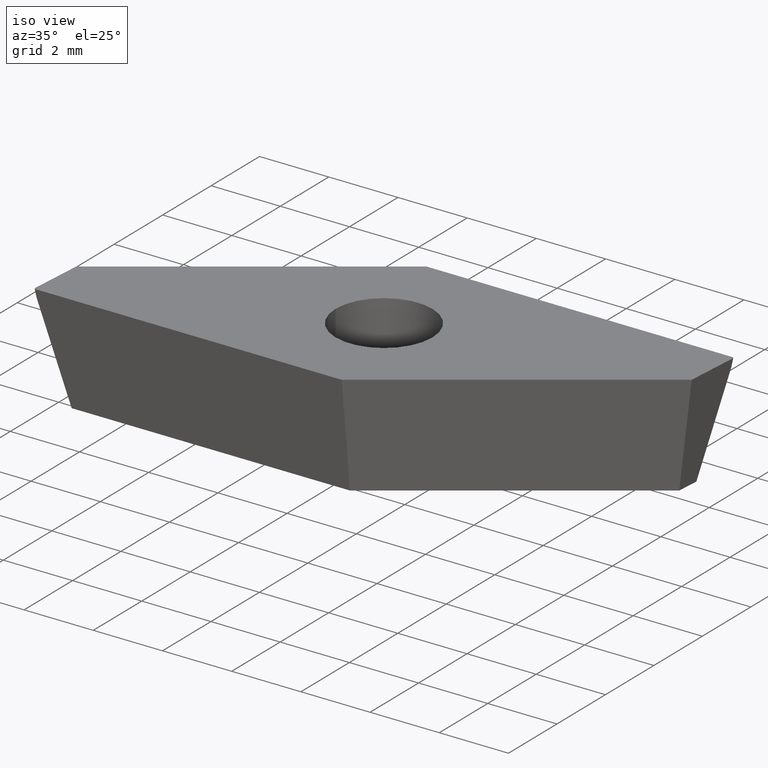
[diagram: clean part render]
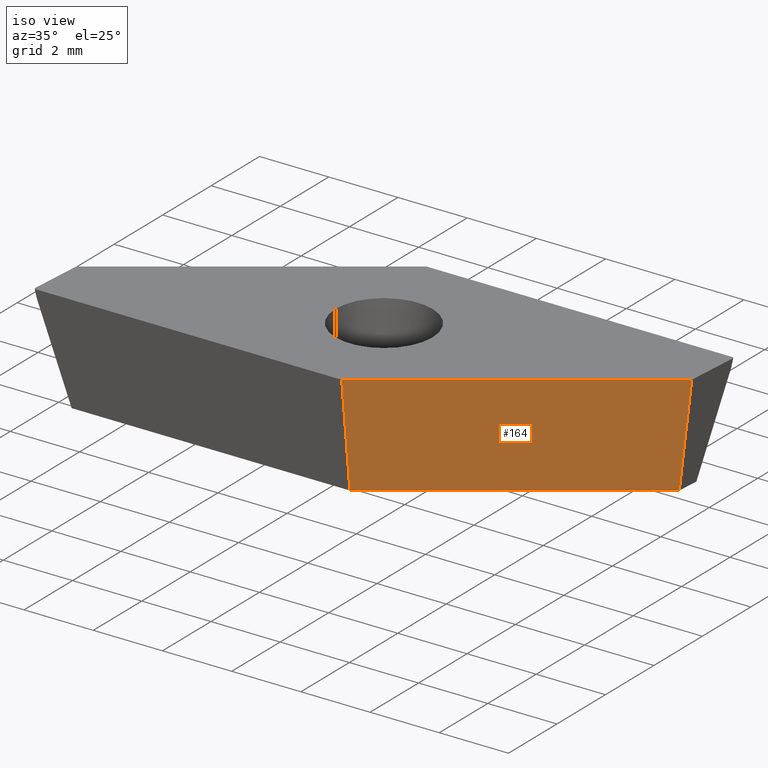
[diagram: same view with one face highlighted and labeled with its STEP entity id]
A machine part, iso view. The second image highlights one B-rep face of the part: STEP entity #164.
In plain terms, the highlighted planar face has unit normal (0.563, -0.8041, -0.1908).
Its self-contained STEP definition (entity closure, byte-faithful):
#27 = VECTOR ( 'NONE', #379, 1000.000000000000100 ) ;
#34 = FACE_OUTER_BOUND ( 'NONE', #326, .T. ) ;
#44 = LINE ( 'NONE', #437, #27 ) ;
#52 = DIRECTION ( 'NONE',  ( 0.1832382521941806600, -0.1036712150141735900, 0.9775868360970839700 ) ) ;
#59 = CARTESIAN_POINT ( 'NONE',  ( 7.788289079147451100, 1.577459403657729400, 3.148184459698170000E-018 ) ) ;
#67 = DIRECTION ( 'NONE',  ( 0.5630382217072209500, -0.8041019140508023400, -0.1908089953765452500 ) ) ;
#72 = PLANE ( 'NONE',  #400 ) ;
#84 = DIRECTION ( 'NONE',  ( 0.8191520442889952400, 0.5735764363510412700, -0.0000000000000000000 ) ) ;
#85 = CARTESIAN_POINT ( 'NONE',  ( 7.788289079147451100, 1.577459403657729400, 0.0000000000000000000 ) ) ;
#99 = VERTEX_POINT ( 'NONE', #142 ) ;
#102 = ORIENTED_EDGE ( 'NONE', *, *, #215, .F. ) ;
#129 = ORIENTED_EDGE ( 'NONE', *, *, #450, .F. ) ;
#130 = DIRECTION ( 'NONE',  ( 0.8191520442889951300, 0.5735764363510412700, 0.0000000000000000000 ) ) ;
#142 = CARTESIAN_POINT ( 'NONE',  ( 1.001073654690762600, -3.174999999999999800, 0.0000000000000000000 ) ) ;
#144 = CARTESIAN_POINT ( 'NONE',  ( 7.433744630409206500, 2.083801351424741500, -3.180000000000000200 ) ) ;
#159 = ORIENTED_EDGE ( 'NONE', *, *, #433, .T. ) ;
#164 = ADVANCED_FACE ( 'NONE', ( #34 ), #72, .T. ) ;
#174 = DIRECTION ( 'NONE',  ( 0.8191520442889951300, 0.5735764363510412700, 0.0000000000000000000 ) ) ;
#179 = LINE ( 'NONE', #85, #271 ) ;
#215 = EDGE_CURVE ( 'NONE', #365, #99, #44, .T. ) ;
#220 = VECTOR ( 'NONE', #52, 1000.000000000000000 ) ;
#227 = VERTEX_POINT ( 'NONE', #421 ) ;
#240 = CARTESIAN_POINT ( 'NONE',  ( 7.192231910145610000, 1.914692324122640600, -3.180000000000000200 ) ) ;
#248 = LINE ( 'NONE', #59, #220 ) ;
#266 = VERTEX_POINT ( 'NONE', #240 ) ;
#270 = ORIENTED_EDGE ( 'NONE', *, *, #422, .T. ) ;
#271 = VECTOR ( 'NONE', #84, 1000.000000000000100 ) ;
#282 = CARTESIAN_POINT ( 'NONE',  ( 0.8061782088420801400, -2.556870616942053400, -3.180000000000000200 ) ) ;
#285 = VECTOR ( 'NONE', #174, 1000.000000000000000 ) ;
#326 = EDGE_LOOP ( 'NONE', ( #129, #102, #270, #159 ) ) ;
#365 = VERTEX_POINT ( 'NONE', #282 ) ;
#379 = DIRECTION ( 'NONE',  ( 0.06005326349153969300, -0.1904646183547176200, 0.9798555172570124800 ) ) ;
#400 = AXIS2_PLACEMENT_3D ( 'NONE', #447, #67, #130 ) ;
#412 = LINE ( 'NONE', #144, #285 ) ;
#421 = CARTESIAN_POINT ( 'NONE',  ( 7.788289079147451100, 1.577459403657729400, 0.0000000000000000000 ) ) ;
#422 = EDGE_CURVE ( 'NONE', #365, #266, #412, .T. ) ;
#433 = EDGE_CURVE ( 'NONE', #266, #227, #248, .T. ) ;
#437 = CARTESIAN_POINT ( 'NONE',  ( 1.001073654690761700, -3.174999999999999800, 4.532429341667184100E-017 ) ) ;
#447 = CARTESIAN_POINT ( 'NONE',  ( 7.788289079147451100, 1.577459403657729400, 0.0000000000000000000 ) ) ;
#450 = EDGE_CURVE ( 'NONE', #99, #227, #179, .T. ) ;